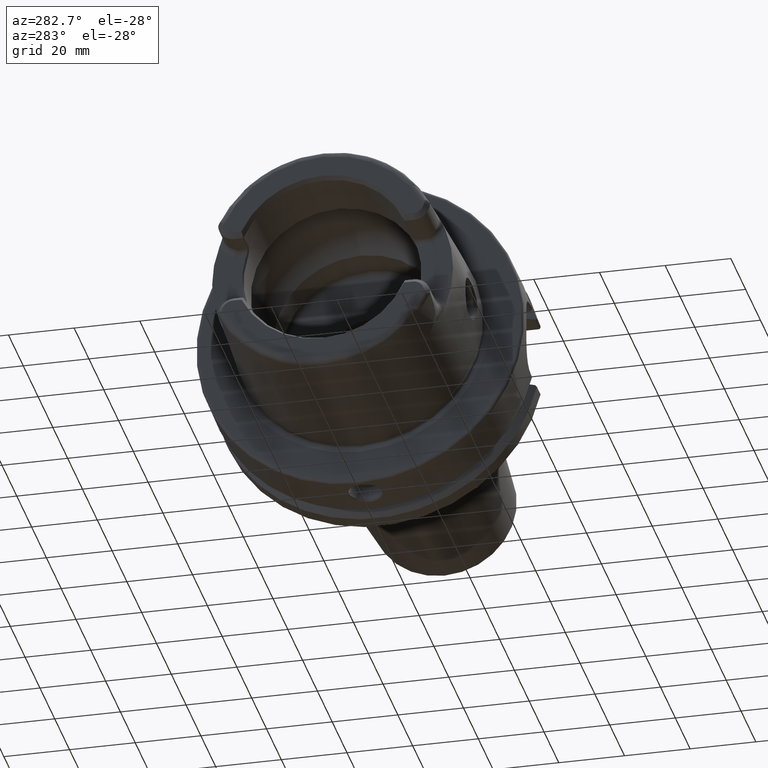
[diagram: clean part render]
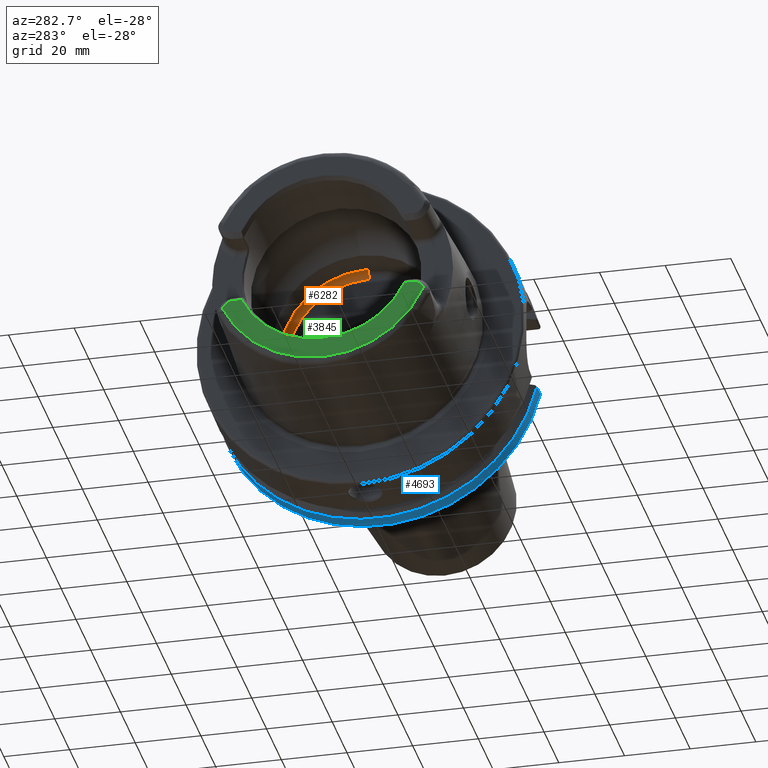
[diagram: same view with three faces highlighted in distinct colors, each labeled with its STEP entity id]
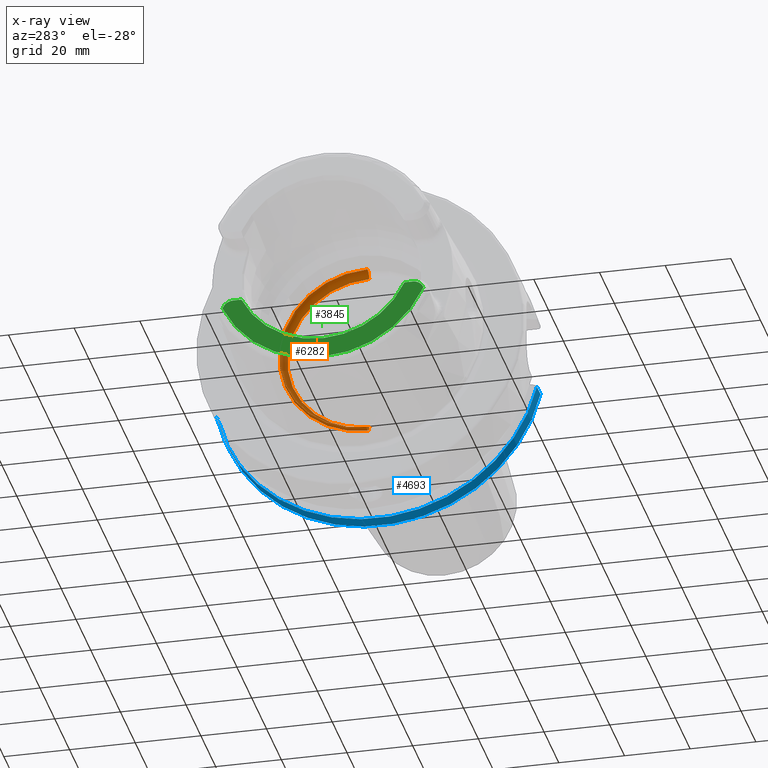
[diagram: x-ray of the same camera — body ghosted, the three highlighted faces saturated]
A machine part, auxiliary view with three faces highlighted in distinct colors.
The next image is the same camera in x-ray (body ghosted, the three faces saturated) — at least one of them is partly hidden behind the body in this view.
Their STEP definitions:

[orange] entity #6282 — the highlighted toroidal blend (fillet) surface has major radius 24.9 mm and minor (blend) radius 2 mm.
#232=CARTESIAN_POINT('',(9.3E0,0.E0,0.E0));
#233=DIRECTION('',(1.E0,0.E0,0.E0));
#234=DIRECTION('',(0.E0,0.E0,-1.E0));
#235=AXIS2_PLACEMENT_3D('',#232,#233,#234);
#2676=CARTESIAN_POINT('',(1.05E1,0.E0,-2.49E1));
#2677=DIRECTION('',(0.E0,1.E0,0.E0));
#2678=DIRECTION('',(1.E0,0.E0,0.E0));
#2679=AXIS2_PLACEMENT_3D('',#2676,#2677,#2678);
#2686=CARTESIAN_POINT('',(1.05E1,0.E0,2.49E1));
#2687=DIRECTION('',(0.E0,-1.E0,0.E0));
#2688=DIRECTION('',(1.E0,0.E0,0.E0));
#2689=AXIS2_PLACEMENT_3D('',#2686,#2687,#2688);
#2691=CARTESIAN_POINT('',(1.25E1,0.E0,0.E0));
#2692=DIRECTION('',(1.E0,0.E0,0.E0));
#2693=DIRECTION('',(0.E0,0.E0,-1.E0));
#2694=AXIS2_PLACEMENT_3D('',#2691,#2692,#2693);
#2792=CARTESIAN_POINT('',(1.25E1,0.E0,-2.49E1));
#2793=CARTESIAN_POINT('',(1.25E1,0.E0,2.49E1));
#2794=VERTEX_POINT('',#2792);
#2795=VERTEX_POINT('',#2793);
#2796=CARTESIAN_POINT('',(9.3E0,0.E0,-2.65E1));
#2797=CARTESIAN_POINT('',(9.3E0,0.E0,2.65E1));
#2798=VERTEX_POINT('',#2796);
#2799=VERTEX_POINT('',#2797);
#6271=CARTESIAN_POINT('',(1.05E1,0.E0,0.E0));
#6272=DIRECTION('',(1.E0,0.E0,0.E0));
#6273=DIRECTION('',(0.E0,0.E0,1.E0));
#6274=AXIS2_PLACEMENT_3D('',#6271,#6272,#6273);
#6275=TOROIDAL_SURFACE('',#6274,2.49E1,2.E0);
#6276=ORIENTED_EDGE('',*,*,#3451,.T.);
#6277=ORIENTED_EDGE('',*,*,#6266,.F.);
#6278=ORIENTED_EDGE('',*,*,#6248,.F.);
#6279=ORIENTED_EDGE('',*,*,#6263,.T.);
#6280=EDGE_LOOP('',(#6276,#6277,#6278,#6279));
#6281=FACE_OUTER_BOUND('',#6280,.F.);
#6282=ADVANCED_FACE('',(#6281),#6275,.F.);
#236=CIRCLE('',#235,2.65E1);
#2680=CIRCLE('',#2679,2.E0);
#2690=CIRCLE('',#2689,2.E0);
#2695=CIRCLE('',#2694,2.49E1);
#3451=EDGE_CURVE('',#2798,#2799,#236,.T.);
#6248=EDGE_CURVE('',#2794,#2795,#2695,.T.);
#6263=EDGE_CURVE('',#2794,#2798,#2680,.T.);
#6266=EDGE_CURVE('',#2795,#2799,#2690,.T.);

[blue] entity #4693 — the highlighted cylindrical surface (partial cylindrical patch) has radius 50 mm, axis along (1, 0, 0).
#1371=DIRECTION('',(1.E0,0.E0,0.E0));
#1372=VECTOR('',#1371,4.752404735808E0);
#1373=CARTESIAN_POINT('',(2.324759526419E1,4.890531149727E1,-1.040531149727E1));
#1374=LINE('',#1373,#1372);
#1375=DIRECTION('',(1.E0,0.E0,0.E0));
#1376=VECTOR('',#1375,4.752404735808E0);
#1377=CARTESIAN_POINT('',(2.324759526419E1,-4.866725793949E1,
-1.146725793949E1));
#1378=LINE('',#1377,#1376);
#1479=CARTESIAN_POINT('',(2.8E1,0.E0,0.E0));
#1480=DIRECTION('',(-1.E0,0.E0,0.E0));
#1481=DIRECTION('',(0.E0,9.781062299454E-1,-2.081062299454E-1));
#1482=AXIS2_PLACEMENT_3D('',#1479,#1480,#1481);
#1489=CARTESIAN_POINT('',(2.8E1,-4.866725793949E1,-1.146725793949E1));
#1625=CARTESIAN_POINT('',(2.8E1,4.890531149727E1,-1.040531149727E1));
#1740=CARTESIAN_POINT('',(2.324759526419E1,-4.866725793949E1,
-1.146725793949E1));
#1742=CARTESIAN_POINT('',(2.324759526419E1,0.E0,0.E0));
#1743=DIRECTION('',(1.E0,0.E0,0.E0));
#1744=DIRECTION('',(0.E0,-9.733451587899E-1,-2.293451587899E-1));
#1745=AXIS2_PLACEMENT_3D('',#1742,#1743,#1744);
#1747=CARTESIAN_POINT('',(2.324759526419E1,4.890531149727E1,-1.040531149727E1));
#3102=VERTEX_POINT('',#1747);
#3119=VERTEX_POINT('',#1740);
#3137=VERTEX_POINT('',#1489);
#3142=VERTEX_POINT('',#1625);
#4678=CARTESIAN_POINT('',(0.E0,0.E0,0.E0));
#4679=DIRECTION('',(1.E0,0.E0,0.E0));
#4680=DIRECTION('',(0.E0,0.E0,1.E0));
#4681=AXIS2_PLACEMENT_3D('',#4678,#4679,#4680);
#4682=CYLINDRICAL_SURFACE('',#4681,5.E1);
#4684=ORIENTED_EDGE('',*,*,#4683,.F.);
#4686=ORIENTED_EDGE('',*,*,#4685,.F.);
#4688=ORIENTED_EDGE('',*,*,#4687,.F.);
#4690=ORIENTED_EDGE('',*,*,#4689,.T.);
#4691=EDGE_LOOP('',(#4684,#4686,#4688,#4690));
#4692=FACE_OUTER_BOUND('',#4691,.F.);
#4693=ADVANCED_FACE('',(#4692),#4682,.T.);
#1483=CIRCLE('',#1482,5.E1);
#1746=CIRCLE('',#1745,5.E1);
#4683=EDGE_CURVE('',#3142,#3137,#1483,.T.);
#4685=EDGE_CURVE('',#3102,#3142,#1374,.T.);
#4687=EDGE_CURVE('',#3119,#3102,#1746,.T.);
#4689=EDGE_CURVE('',#3119,#3137,#1378,.T.);

[green] entity #3845 — the highlighted planar face has unit normal (1, 0, 0).
#116=CARTESIAN_POINT('',(-5.E1,0.E0,0.E0));
#117=DIRECTION('',(-1.E0,0.E0,0.E0));
#118=DIRECTION('',(0.E0,9.107116187708E-1,-4.130427912890E-1));
#119=AXIS2_PLACEMENT_3D('',#116,#117,#118);
#746=DIRECTION('',(0.E0,1.E0,0.E0));
#747=VECTOR('',#746,2.542208185169E0);
#748=CARTESIAN_POINT('',(-5.E1,2.482779181483E1,-1.151E1));
#749=LINE('',#748,#747);
#750=DIRECTION('',(0.E0,-1.E0,0.E0));
#751=VECTOR('',#750,2.542208185169E0);
#752=CARTESIAN_POINT('',(-5.E1,-2.482779181483E1,-1.151E1));
#753=LINE('',#752,#751);
#754=CARTESIAN_POINT('',(-5.E1,-2.737E1,-1.489E1));
#755=DIRECTION('',(1.E0,0.E0,0.E0));
#756=DIRECTION('',(0.E0,1.261318465846E-14,1.E0));
#757=AXIS2_PLACEMENT_3D('',#754,#755,#756);
#759=CARTESIAN_POINT('',(-5.E1,2.737E1,-1.489E1));
#760=DIRECTION('',(-1.E0,0.E0,0.E0));
#761=DIRECTION('',(0.E0,-1.261318465846E-14,1.E0));
#762=AXIS2_PLACEMENT_3D('',#759,#760,#761);
#1102=CARTESIAN_POINT('',(-5.E1,3.375077994860E-14,1.625366508051E-13));
#1103=DIRECTION('',(1.E0,0.E0,0.E0));
#1104=DIRECTION('',(0.E0,-9.072487308076E-1,-4.205945083428E-1));
#1105=AXIS2_PLACEMENT_3D('',#1102,#1103,#1104);
#3005=CARTESIAN_POINT('',(-5.E1,-2.482779181483E1,-1.151E1));
#3006=CARTESIAN_POINT('',(-5.E1,-2.737E1,-1.151E1));
#3007=VERTEX_POINT('',#3005);
#3008=VERTEX_POINT('',#3006);
#3009=CARTESIAN_POINT('',(-5.E1,-3.059420437526E1,-1.387564988957E1));
#3010=VERTEX_POINT('',#3009);
#3047=CARTESIAN_POINT('',(-5.E1,2.737E1,-1.151E1));
#3049=VERTEX_POINT('',#3047);
#3051=CARTESIAN_POINT('',(-5.E1,2.482779181483E1,-1.151E1));
#3052=VERTEX_POINT('',#3051);
#3053=CARTESIAN_POINT('',(-5.E1,3.059420437526E1,-1.387564988957E1));
#3054=VERTEX_POINT('',#3053);
#3830=CARTESIAN_POINT('',(-5.E1,0.E0,0.E0));
#3831=DIRECTION('',(1.E0,0.E0,0.E0));
#3832=DIRECTION('',(0.E0,0.E0,1.E0));
#3833=AXIS2_PLACEMENT_3D('',#3830,#3831,#3832);
#3834=PLANE('',#3833);
#3835=ORIENTED_EDGE('',*,*,#3359,.F.);
#3837=ORIENTED_EDGE('',*,*,#3836,.F.);
#3839=ORIENTED_EDGE('',*,*,#3838,.T.);
#3840=ORIENTED_EDGE('',*,*,#3801,.T.);
#3841=ORIENTED_EDGE('',*,*,#3318,.F.);
#3842=ORIENTED_EDGE('',*,*,#3339,.F.);
#3843=EDGE_LOOP('',(#3835,#3837,#3839,#3840,#3841,#3842));
#3844=FACE_OUTER_BOUND('',#3843,.F.);
#3845=ADVANCED_FACE('',(#3844),#3834,.F.);
#120=CIRCLE('',#119,3.359373455294E1);
#758=CIRCLE('',#757,3.38E0);
#763=CIRCLE('',#762,3.38E0);
#1106=CIRCLE('',#1105,2.736602540378E1);
#3318=EDGE_CURVE('',#3054,#3010,#120,.T.);
#3339=EDGE_CURVE('',#3049,#3054,#763,.T.);
#3359=EDGE_CURVE('',#3052,#3049,#749,.T.);
#3801=EDGE_CURVE('',#3008,#3010,#758,.T.);
#3836=EDGE_CURVE('',#3007,#3052,#1106,.T.);
#3838=EDGE_CURVE('',#3007,#3008,#753,.T.);